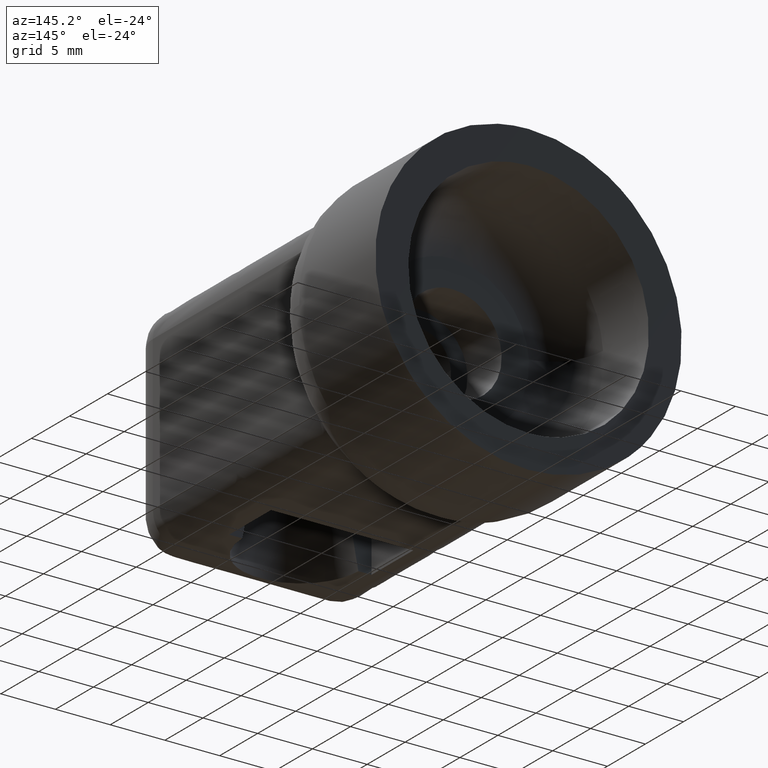
[diagram: clean part render]
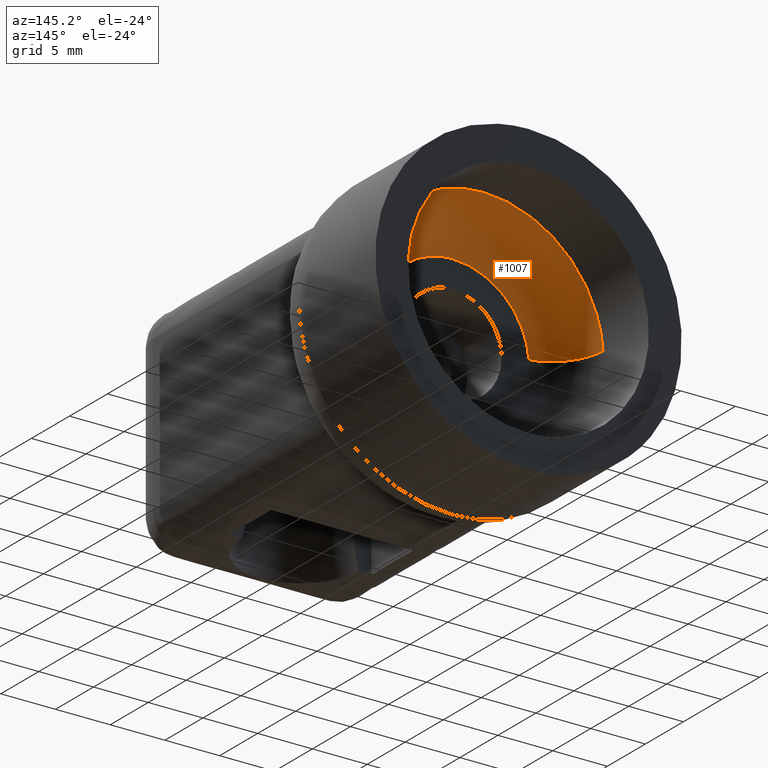
[diagram: same view with one face highlighted and labeled with its STEP entity id]
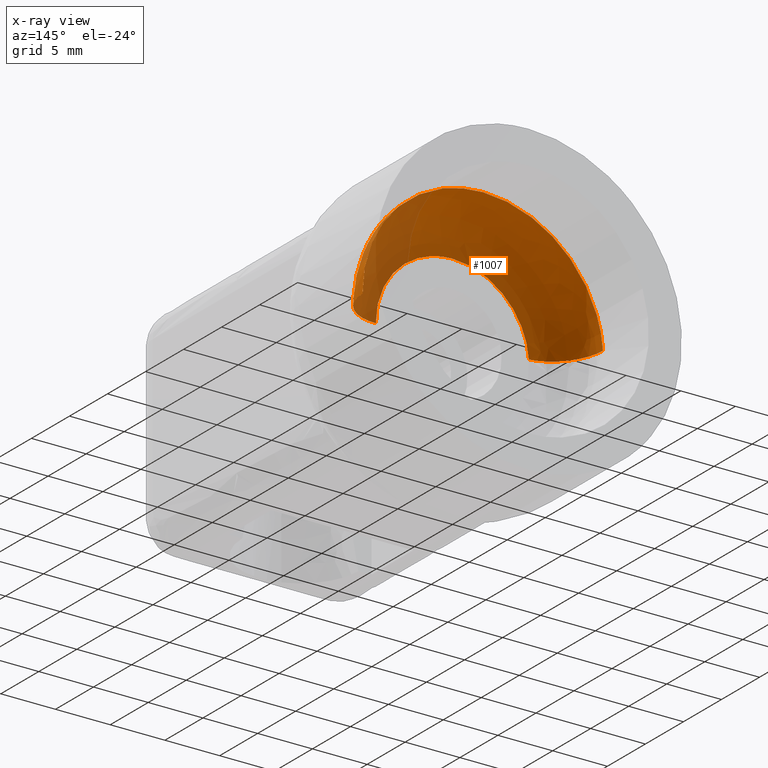
[diagram: x-ray of the same camera — body ghosted, the highlighted face saturated]
A machine part, auxiliary view. The second image highlights one B-rep face of the part: STEP entity #1007.
The next image is the same camera in x-ray: the body ghosted, the highlighted face saturated — about 18% of this face is hidden behind the body in this view.
In plain terms, the highlighted face is a freeform B-spline surface patch.
Its self-contained STEP definition (entity closure, byte-faithful):
#254=CARTESIAN_POINT('',(10.999131580517060,24.000002133350311,-0.138218936441024));
#255=VERTEX_POINT('',#254);
#269=CARTESIAN_POINT('',(0.0,24.0,11.0));
#270=VERTEX_POINT('',#269);
#271=CARTESIAN_POINT('',(10.999131580517066,24.000002133350311,-0.138218936441024));
#272=CARTESIAN_POINT('',(10.999999999996311,24.000002126732159,-0.069112196328560));
#273=CARTESIAN_POINT('',(10.999999999996330,24.000002120030320,4.548318E-014));
#274=CARTESIAN_POINT('',(10.999999999998176,24.000001053355160,11.000000000000023));
#275=CARTESIAN_POINT('',(0.0,24.0,11.0));
#283=(BOUNDED_CURVE()B_SPLINE_CURVE(2,(#271,#272,#273,#274,#275),.UNSPECIFIED.,.F.,.U.)B_SPLINE_CURVE_WITH_KNOTS((3,2,3),(0.247784415876956,0.250000000000000,0.500000000000000),.UNSPECIFIED.)CURVE()GEOMETRIC_REPRESENTATION_ITEM()RATIONAL_B_SPLINE_CURVE((0.994854571734541,0.997404281738599,1.0,0.707106781186548,1.0))REPRESENTATION_ITEM(''));
#284=EDGE_CURVE('',#255,#270,#283,.T.);
#286=CARTESIAN_POINT('',(-10.973222571326680,24.000002059557129,0.767063491569085));
#287=VERTEX_POINT('',#286);
#288=CARTESIAN_POINT('',(0.0,24.0,11.0));
#289=CARTESIAN_POINT('',(-10.257907452533308,24.000001029778563,10.999999999999954));
#290=CARTESIAN_POINT('',(-10.973222571326680,24.000002059557133,0.767063491569085));
#298=(BOUNDED_CURVE()B_SPLINE_CURVE(2,(#288,#289,#290),.UNSPECIFIED.,.F.,.U.)B_SPLINE_CURVE_WITH_KNOTS((3,3),(0.500000000000000,0.737833722202962),.UNSPECIFIED.)CURVE()GEOMETRIC_REPRESENTATION_ITEM()RATIONAL_B_SPLINE_CURVE((1.0,0.721360462246360,0.972879951827607))REPRESENTATION_ITEM(''));
#299=EDGE_CURVE('',#270,#287,#298,.T.);
#881=CARTESIAN_POINT('',(-6.982959722509144,20.0,0.488132767374801));
#882=VERTEX_POINT('',#881);
#900=CARTESIAN_POINT('',(6.999447310105774,20.0,-0.087962279396084));
#901=VERTEX_POINT('',#900);
#915=CARTESIAN_POINT('',(10.999131580517064,24.000002133350311,-0.138218936441024));
#916=CARTESIAN_POINT('',(10.999133666220139,20.000000001363368,-0.138222714484469));
#917=CARTESIAN_POINT('',(6.999447310105774,20.0,-0.087962279396084));
#925=(BOUNDED_CURVE()B_SPLINE_CURVE(2,(#915,#916,#917),.UNSPECIFIED.,.F.,.U.)B_SPLINE_CURVE_WITH_KNOTS((3,3),(-1.725135190217025,-0.274865357067716),.UNSPECIFIED.)CURVE()GEOMETRIC_REPRESENTATION_ITEM()RATIONAL_B_SPLINE_CURVE((0.883342344797266,0.624617126617869,0.883342149528348))REPRESENTATION_ITEM(''));
#926=EDGE_CURVE('',#255,#901,#925,.T.);
#932=CARTESIAN_POINT('',(-10.973222571326680,24.000002059557140,0.767063491569085));
#933=CARTESIAN_POINT('',(-10.973224543102797,20.000000012110014,0.767064775820264));
#934=CARTESIAN_POINT('',(-6.982959722509145,20.000000000000004,0.488132767374801));
#942=(BOUNDED_CURVE()B_SPLINE_CURVE(2,(#932,#933,#934),.UNSPECIFIED.,.F.,.U.)B_SPLINE_CURVE_WITH_KNOTS((3,3),(-1.725135171298383,-0.274865359822873),.UNSPECIFIED.)CURVE()GEOMETRIC_REPRESENTATION_ITEM()RATIONAL_B_SPLINE_CURVE((0.863472259529040,0.610566868324536,0.863472074289881))REPRESENTATION_ITEM(''));
#943=EDGE_CURVE('',#287,#882,#942,.T.);
#948=CARTESIAN_POINT('',(10.989449580967070,24.278150326493414,-0.138104765902274));
#949=CARTESIAN_POINT('',(11.127554346869349,24.278150326493414,10.851344815064799));
#950=CARTESIAN_POINT('',(0.138104765902275,24.278150326493414,10.989449580967070));
#951=CARTESIAN_POINT('',(-10.239819748500125,24.278150326493410,11.119869291713577));
#952=CARTESIAN_POINT('',(-10.963563313243288,24.278150326493414,0.766390563282327));
#953=CARTESIAN_POINT('',(11.309257774364134,19.689851046558857,-0.142123805742015));
#954=CARTESIAN_POINT('',(11.451381580106144,19.689851046558857,11.167133968622119));
#955=CARTESIAN_POINT('',(0.142123805742015,19.689851046558857,11.309257774364134));
#956=CARTESIAN_POINT('',(-10.537812676203350,19.689851046558857,11.443472879208393));
#957=CARTESIAN_POINT('',(-11.282618180420181,19.689851046558868,0.788693589441560));
#958=CARTESIAN_POINT('',(6.721320631996973,20.009682552140635,-0.084467052293840));
#959=CARTESIAN_POINT('',(6.805787684290815,20.009682552140632,6.636853579703135));
#960=CARTESIAN_POINT('',(0.084467052293841,20.009682552140635,6.721320631996973));
#961=CARTESIAN_POINT('',(-6.262835207208561,20.009682552140639,6.801087383388940));
#962=CARTESIAN_POINT('',(-6.705488182513916,20.009682552140632,0.468736552017921));
#970=(BOUNDED_SURFACE()B_SPLINE_SURFACE(2,2,((#948,#953,#958),(#949,#954,#959),(#950,#955,#960),(#951,#956,#961),(#952,#957,#962)),.UNSPECIFIED.,.F.,.F.,.U.)B_SPLINE_SURFACE_WITH_KNOTS((3,2,3),(3,3),(0.0,18.209353971848390,35.690333784822847),(0.0,7.289498179379115),.UNSPECIFIED.)GEOMETRIC_REPRESENTATION_ITEM()RATIONAL_B_SPLINE_SURFACE(((0.910479991567964,0.597479469929812,0.910479816133740),(0.643806576172378,0.422481784807114,0.643806452121649),(0.910479991567964,0.597479469929812,0.910479816133740),(0.654473512788201,0.429481692212022,0.654473386682133),(0.889999473265583,0.584039647712389,0.889999301777612)))REPRESENTATION_ITEM('')SURFACE());
#971=CARTESIAN_POINT('',(0.0,20.0,7.0));
#972=VERTEX_POINT('',#971);
#973=CARTESIAN_POINT('',(0.0,20.0,7.0));
#974=CARTESIAN_POINT('',(-6.527757919762810,20.000000000000004,6.999999999999999));
#975=CARTESIAN_POINT('',(-6.982959722509144,20.0,0.488132767374801));
#983=(BOUNDED_CURVE()B_SPLINE_CURVE(2,(#973,#974,#975),.UNSPECIFIED.,.F.,.U.)B_SPLINE_CURVE_WITH_KNOTS((3,3),(0.500000000000000,0.737833686243309),.UNSPECIFIED.)CURVE()GEOMETRIC_REPRESENTATION_ITEM()RATIONAL_B_SPLINE_CURVE((1.0,0.721360504375713,0.972879875769831))REPRESENTATION_ITEM(''));
#984=EDGE_CURVE('',#972,#882,#983,.T.);
#985=ORIENTED_EDGE('',*,*,#984,.T.);
#986=ORIENTED_EDGE('',*,*,#943,.F.);
#987=ORIENTED_EDGE('',*,*,#299,.F.);
#988=ORIENTED_EDGE('',*,*,#284,.F.);
#989=ORIENTED_EDGE('',*,*,#926,.T.);
#990=CARTESIAN_POINT('',(6.999447310105774,20.0,-0.087962279396084));
#991=CARTESIAN_POINT('',(7.0,20.000000000000004,-0.043982876147302));
#992=CARTESIAN_POINT('',(7.0,20.0,0.0));
#993=CARTESIAN_POINT('',(6.999999999999999,20.0,6.999999999999999));
#994=CARTESIAN_POINT('',(0.0,20.0,7.0));
#1002=(BOUNDED_CURVE()B_SPLINE_CURVE(2,(#990,#991,#992,#993,#994),.UNSPECIFIED.,.F.,.U.)B_SPLINE_CURVE_WITH_KNOTS((3,2,3),(0.247784295911474,0.250000000000000,0.500000000000000),.UNSPECIFIED.)CURVE()GEOMETRIC_REPRESENTATION_ITEM()RATIONAL_B_SPLINE_CURVE((0.994854295620412,0.997404141190294,1.0,0.707106781186547,1.0))REPRESENTATION_ITEM(''));
#1003=EDGE_CURVE('',#901,#972,#1002,.T.);
#1004=ORIENTED_EDGE('',*,*,#1003,.T.);
#1005=EDGE_LOOP('',(#985,#986,#987,#988,#989,#1004));
#1006=FACE_OUTER_BOUND('',#1005,.T.);
#1007=ADVANCED_FACE('',(#1006),#970,.F.);